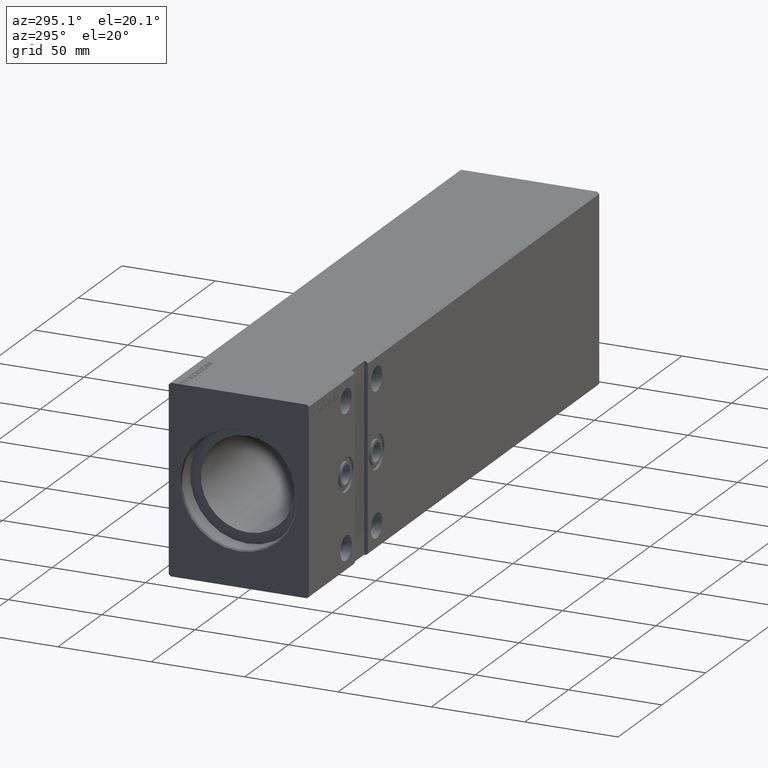
[diagram: clean part render]
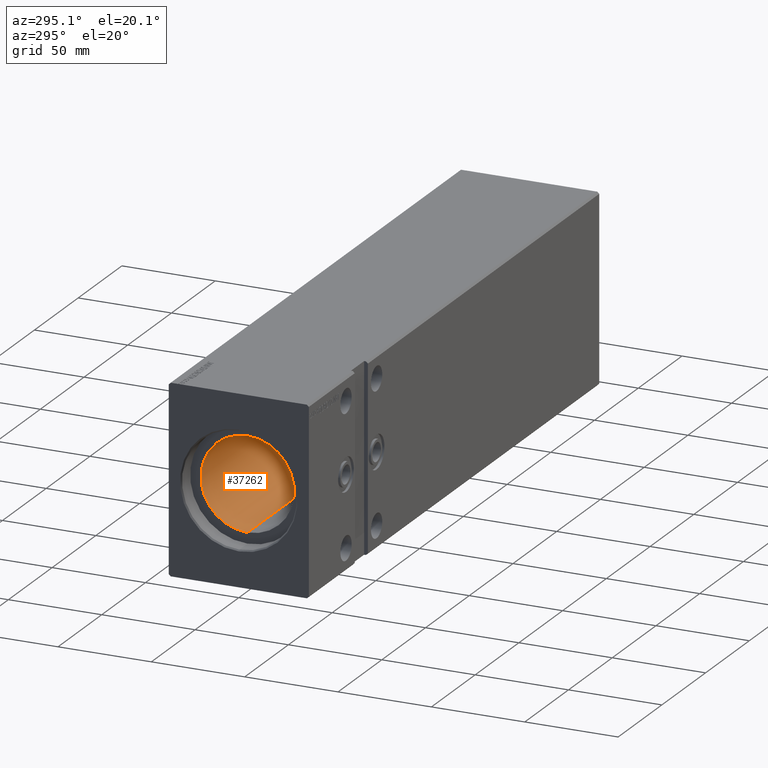
[diagram: same view with one face highlighted and labeled with its STEP entity id]
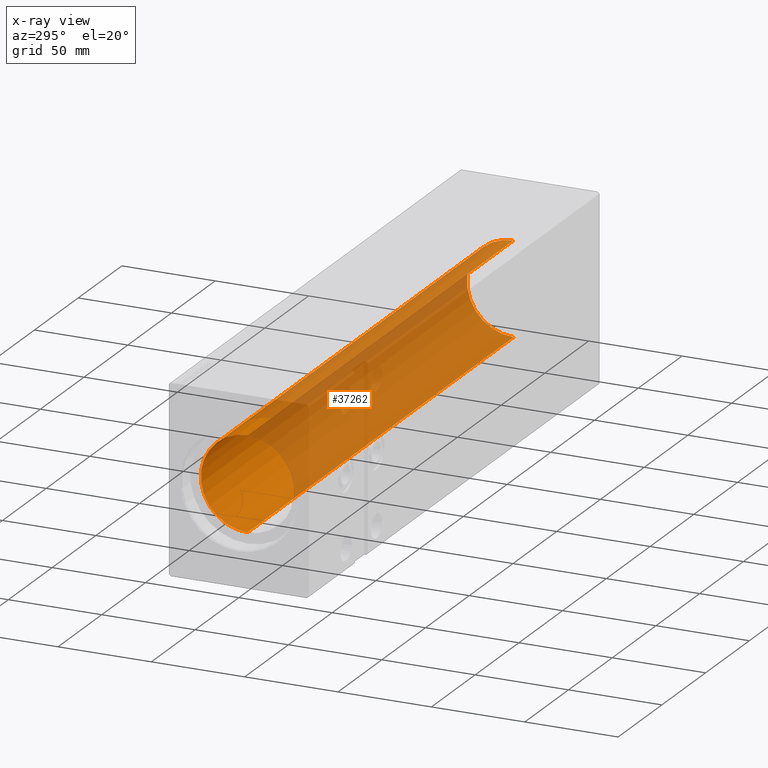
[diagram: x-ray of the same camera — body ghosted, the highlighted face saturated]
A machine part, auxiliary view. The second image highlights one B-rep face of the part: STEP entity #37262.
The next image is the same camera in x-ray: the body ghosted, the highlighted face saturated — about 77% of this face is hidden behind the body in this view.
In plain terms, the highlighted cylindrical surface (partial cylindrical patch) has radius 25 mm, axis along (-1, -0, -0).
Its self-contained STEP definition (entity closure, byte-faithful):
#389 = DIRECTION ( 'NONE',  ( -1.000000000000000000, 0.000000000000000000, 0.000000000000000000 ) ) ;
#2739 = EDGE_CURVE ( 'NONE', #8987, #14615, #38724, .T. ) ;
#4072 = CARTESIAN_POINT ( 'NONE',  ( 314.1999999999999886, 3.061616997868383043E-15, -25.00000000000000000 ) ) ;
#5169 = ORIENTED_EDGE ( 'NONE', *, *, #31369, .F. ) ;
#7205 = EDGE_LOOP ( 'NONE', ( #5169, #28962, #35963, #39379 ) ) ;
#7463 = LINE ( 'NONE', #4072, #18193 ) ;
#8987 = VERTEX_POINT ( 'NONE', #36136 ) ;
#9269 = CARTESIAN_POINT ( 'NONE',  ( 10.00000000000000888, 0.000000000000000000, 25.00000000000000000 ) ) ;
#9428 = DIRECTION ( 'NONE',  ( -1.000000000000000000, 0.000000000000000000, 0.000000000000000000 ) ) ;
#9976 = CYLINDRICAL_SURFACE ( 'NONE', #21064, 25.00000000000000000 ) ;
#12815 = CARTESIAN_POINT ( 'NONE',  ( 10.00000000000000888, 0.000000000000000000, 0.000000000000000000 ) ) ;
#14615 = VERTEX_POINT ( 'NONE', #9269 ) ;
#14782 = VERTEX_POINT ( 'NONE', #20518 ) ;
#15450 = EDGE_CURVE ( 'NONE', #8987, #23691, #17483, .T. ) ;
#16170 = DIRECTION ( 'NONE',  ( -1.000000000000000000, -0.000000000000000000, -0.000000000000000000 ) ) ;
#17483 = CIRCLE ( 'NONE', #32430, 25.00000000000000000 ) ;
#18193 = VECTOR ( 'NONE', #19978, 1000.000000000000000 ) ;
#19333 = CARTESIAN_POINT ( 'NONE',  ( 314.1999999999999886, 3.061616997868383043E-15, -25.00000000000000000 ) ) ;
#19929 = CARTESIAN_POINT ( 'NONE',  ( 314.1999999999999886, 0.000000000000000000, 0.000000000000000000 ) ) ;
#19978 = DIRECTION ( 'NONE',  ( -1.000000000000000000, -0.000000000000000000, -0.000000000000000000 ) ) ;
#20518 = CARTESIAN_POINT ( 'NONE',  ( 10.00000000000000888, 3.061616997868383043E-15, -25.00000000000000000 ) ) ;
#21064 = AXIS2_PLACEMENT_3D ( 'NONE', #32541, #22947, #39114 ) ;
#22799 = DIRECTION ( 'NONE',  ( 0.000000000000000000, 0.000000000000000000, 1.000000000000000000 ) ) ;
#22817 = CIRCLE ( 'NONE', #39800, 25.00000000000000000 ) ;
#22947 = DIRECTION ( 'NONE',  ( -1.000000000000000000, -0.000000000000000000, -0.000000000000000000 ) ) ;
#23691 = VERTEX_POINT ( 'NONE', #19333 ) ;
#26172 = CARTESIAN_POINT ( 'NONE',  ( 314.1999999999999886, 0.000000000000000000, 25.00000000000000000 ) ) ;
#26319 = DIRECTION ( 'NONE',  ( 0.000000000000000000, 0.000000000000000000, 1.000000000000000000 ) ) ;
#28962 = ORIENTED_EDGE ( 'NONE', *, *, #15450, .F. ) ;
#31369 = EDGE_CURVE ( 'NONE', #23691, #14782, #7463, .T. ) ;
#32430 = AXIS2_PLACEMENT_3D ( 'NONE', #19929, #389, #26319 ) ;
#32541 = CARTESIAN_POINT ( 'NONE',  ( 314.1999999999999886, 0.000000000000000000, 0.000000000000000000 ) ) ;
#35512 = FACE_OUTER_BOUND ( 'NONE', #7205, .T. ) ;
#35963 = ORIENTED_EDGE ( 'NONE', *, *, #2739, .T. ) ;
#36136 = CARTESIAN_POINT ( 'NONE',  ( 314.1999999999999886, 0.000000000000000000, 25.00000000000000000 ) ) ;
#37262 = ADVANCED_FACE ( 'NONE', ( #35512 ), #9976, .F. ) ;
#38724 = LINE ( 'NONE', #26172, #41072 ) ;
#39114 = DIRECTION ( 'NONE',  ( 0.000000000000000000, 0.000000000000000000, 1.000000000000000000 ) ) ;
#39324 = EDGE_CURVE ( 'NONE', #14615, #14782, #22817, .T. ) ;
#39379 = ORIENTED_EDGE ( 'NONE', *, *, #39324, .T. ) ;
#39800 = AXIS2_PLACEMENT_3D ( 'NONE', #12815, #9428, #22799 ) ;
#41072 = VECTOR ( 'NONE', #16170, 1000.000000000000000 ) ;